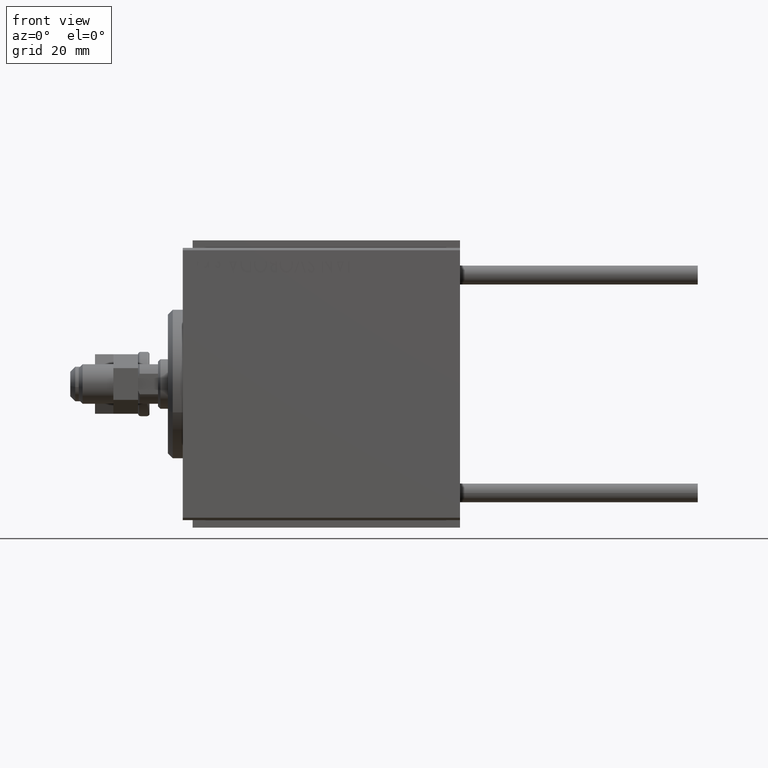
[diagram: clean part render]
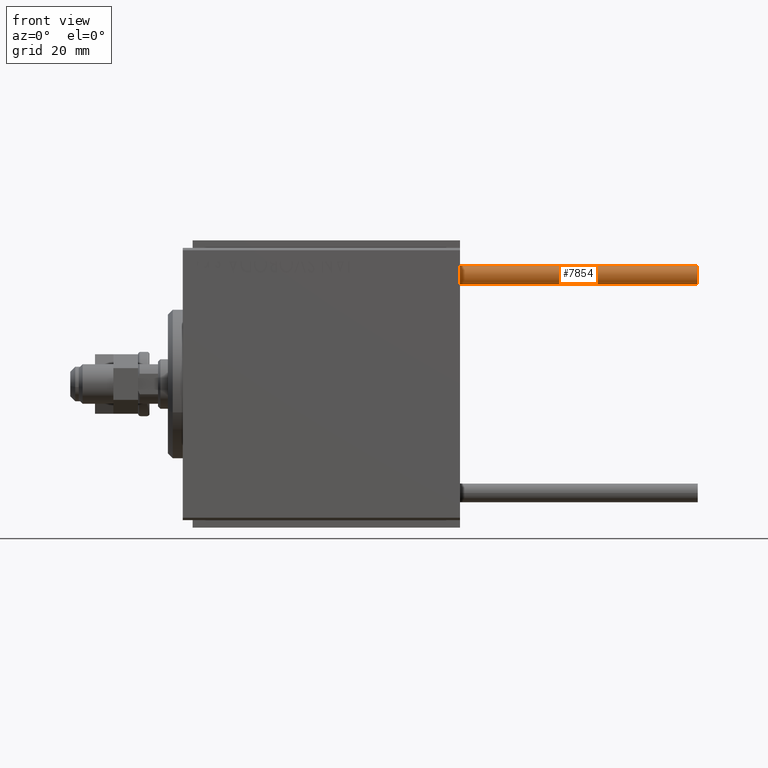
[diagram: same view with one face highlighted and labeled with its STEP entity id]
A machine part, front view. The second image highlights one B-rep face of the part: STEP entity #7854.
In plain terms, the highlighted cylindrical surface (edge-blend (fillet) strip) has radius 1.9 mm, axis along (-1, -0, 0).
Its self-contained STEP definition (entity closure, byte-faithful):
#2156 = CYLINDRICAL_SURFACE ( 'NONE', #28130, 1.899999999999999467 ) ;
#4677 = DIRECTION ( 'NONE',  ( -0.000000000000000000, -0.000000000000000000, -1.000000000000000000 ) ) ;
#6519 = CARTESIAN_POINT ( 'NONE',  ( 0.000000000000000000, 0.000000000000000000, 48.00000000000000000 ) ) ;
#6773 = DIRECTION ( 'NONE',  ( -1.000000000000000000, 0.000000000000000000, 0.000000000000000000 ) ) ;
#7500 = VERTEX_POINT ( 'NONE', #15012 ) ;
#7854 = ADVANCED_FACE ( 'NONE', ( #18339 ), #2156, .T. ) ;
#7929 = DIRECTION ( 'NONE',  ( 1.000000000000000000, 0.000000000000000000, 0.000000000000000000 ) ) ;
#8878 = CARTESIAN_POINT ( 'NONE',  ( -1.899999999999999467, 0.000000000000000000, 0.000000000000000000 ) ) ;
#8910 = EDGE_CURVE ( 'NONE', #35121, #42805, #35291, .T. ) ;
#9399 = CARTESIAN_POINT ( 'NONE',  ( 1.899999999999999467, 2.326828918379970872E-16, 48.00000000000000000 ) ) ;
#11591 = DIRECTION ( 'NONE',  ( 1.000000000000000000, 0.000000000000000000, 0.000000000000000000 ) ) ;
#13388 = DIRECTION ( 'NONE',  ( -0.000000000000000000, -0.000000000000000000, -1.000000000000000000 ) ) ;
#15012 = CARTESIAN_POINT ( 'NONE',  ( 1.899999999999999467, 2.326828918379970872E-16, 0.000000000000000000 ) ) ;
#18339 = FACE_OUTER_BOUND ( 'NONE', #44005, .T. ) ;
#19599 = CARTESIAN_POINT ( 'NONE',  ( -1.899999999999999467, 0.000000000000000000, 48.00000000000000000 ) ) ;
#20575 = LINE ( 'NONE', #40654, #23013 ) ;
#22186 = DIRECTION ( 'NONE',  ( -0.000000000000000000, -0.000000000000000000, -1.000000000000000000 ) ) ;
#23013 = VECTOR ( 'NONE', #13388, 1000.000000000000000 ) ;
#23110 = CIRCLE ( 'NONE', #46951, 1.899999999999999467 ) ;
#27459 = DIRECTION ( 'NONE',  ( 0.000000000000000000, 0.000000000000000000, 1.000000000000000000 ) ) ;
#28130 = AXIS2_PLACEMENT_3D ( 'NONE', #6519, #22186, #6773 ) ;
#30120 = CARTESIAN_POINT ( 'NONE',  ( -1.899999999999999467, 0.000000000000000000, 48.00000000000000000 ) ) ;
#31826 = EDGE_CURVE ( 'NONE', #35121, #32239, #39425, .T. ) ;
#32239 = VERTEX_POINT ( 'NONE', #9399 ) ;
#35121 = VERTEX_POINT ( 'NONE', #30120 ) ;
#35291 = LINE ( 'NONE', #19599, #47886 ) ;
#38064 = ORIENTED_EDGE ( 'NONE', *, *, #40676, .F. ) ;
#39425 = CIRCLE ( 'NONE', #45155, 1.899999999999999467 ) ;
#40654 = CARTESIAN_POINT ( 'NONE',  ( 1.899999999999999467, 2.326828918379970872E-16, 48.00000000000000000 ) ) ;
#40676 = EDGE_CURVE ( 'NONE', #32239, #7500, #20575, .T. ) ;
#41967 = DIRECTION ( 'NONE',  ( 0.000000000000000000, 0.000000000000000000, 1.000000000000000000 ) ) ;
#42716 = CARTESIAN_POINT ( 'NONE',  ( 0.000000000000000000, 0.000000000000000000, 48.00000000000000000 ) ) ;
#42805 = VERTEX_POINT ( 'NONE', #8878 ) ;
#43266 = EDGE_CURVE ( 'NONE', #42805, #7500, #23110, .T. ) ;
#44005 = EDGE_LOOP ( 'NONE', ( #38064, #45678, #44947, #50686 ) ) ;
#44947 = ORIENTED_EDGE ( 'NONE', *, *, #8910, .T. ) ;
#45155 = AXIS2_PLACEMENT_3D ( 'NONE', #42716, #41967, #11591 ) ;
#45678 = ORIENTED_EDGE ( 'NONE', *, *, #31826, .F. ) ;
#46951 = AXIS2_PLACEMENT_3D ( 'NONE', #47009, #27459, #7929 ) ;
#47009 = CARTESIAN_POINT ( 'NONE',  ( 0.000000000000000000, 0.000000000000000000, 0.000000000000000000 ) ) ;
#47886 = VECTOR ( 'NONE', #4677, 1000.000000000000000 ) ;
#50686 = ORIENTED_EDGE ( 'NONE', *, *, #43266, .T. ) ;